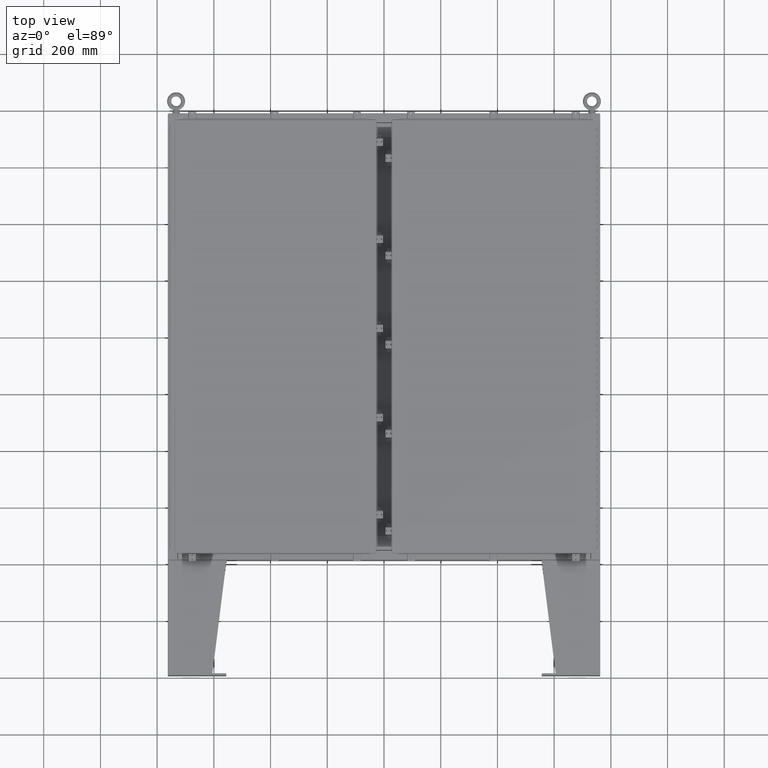
[diagram: clean part render]
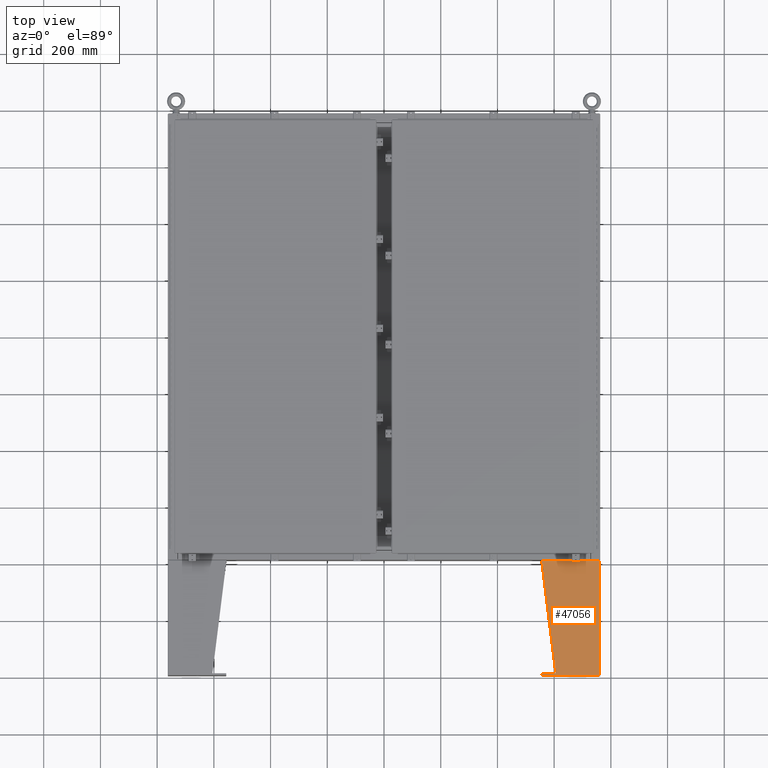
[diagram: same view with one face highlighted and labeled with its STEP entity id]
A machine part, top view. The second image highlights one B-rep face of the part: STEP entity #47056.
In plain terms, the highlighted planar face has unit normal (0, 0, -1).
Its self-contained STEP definition (entity closure, byte-faithful):
#816 = EDGE_CURVE ( 'NONE', #20283, #58457, #22958, .T. ) ;
#1327 = DIRECTION ( 'NONE',  ( 7.004738445292925900E-015, 0.0000000000000000000, 1.000000000000000000 ) ) ;
#1390 = EDGE_CURVE ( 'NONE', #40135, #58457, #12661, .T. ) ;
#2884 = FACE_OUTER_BOUND ( 'NONE', #35505, .T. ) ;
#3335 = EDGE_CURVE ( 'NONE', #40378, #24212, #20828, .T. ) ;
#5312 = VECTOR ( 'NONE', #22848, 39.37007874015748100 ) ;
#9497 = LINE ( 'NONE', #42797, #65042 ) ;
#10521 = EDGE_CURVE ( 'NONE', #46176, #40378, #9497, .T. ) ;
#10583 = DIRECTION ( 'NONE',  ( 0.0000000000000000000, -1.000000000000000000, 0.0000000000000000000 ) ) ;
#11414 = PLANE ( 'NONE',  #12048 ) ;
#12048 = AXIS2_PLACEMENT_3D ( 'NONE', #65038, #49023, #16833 ) ;
#12661 = LINE ( 'NONE', #55237, #68191 ) ;
#13746 = DIRECTION ( 'NONE',  ( 4.399772607369799400E-016, 0.9922942345449394800, 0.1239038017531047700 ) ) ;
#15000 = VECTOR ( 'NONE', #1327, 39.37007874015748100 ) ;
#15410 = LINE ( 'NONE', #64213, #56649 ) ;
#15773 = VECTOR ( 'NONE', #13746, 39.37007874015748100 ) ;
#16013 = DIRECTION ( 'NONE',  ( -3.550958521948298200E-015, -0.0000000000000000000, -1.000000000000000000 ) ) ;
#16833 = DIRECTION ( 'NONE',  ( 3.550958521948298200E-015, 0.0000000000000000000, 1.000000000000000000 ) ) ;
#20283 = VERTEX_POINT ( 'NONE', #44880 ) ;
#20828 = LINE ( 'NONE', #51130, #15773 ) ;
#21080 = ORIENTED_EDGE ( 'NONE', *, *, #3335, .F. ) ;
#21715 = EDGE_CURVE ( 'NONE', #40135, #24212, #56235, .T. ) ;
#22053 = CARTESIAN_POINT ( 'NONE',  ( 5.000000000000028400, -7.749999999999999100, 8.001000000000006600 ) ) ;
#22226 = CARTESIAN_POINT ( 'NONE',  ( 5.000000000000041700, 7.857000000000001100, 8.000999999999985200 ) ) ;
#22848 = DIRECTION ( 'NONE',  ( -3.550958521948298200E-015, 0.0000000000000000000, -1.000000000000000000 ) ) ;
#22958 = LINE ( 'NONE', #38874, #5312 ) ;
#24212 = VERTEX_POINT ( 'NONE', #22226 ) ;
#32346 = CARTESIAN_POINT ( 'NONE',  ( 4.999999999999984900, 7.857000000000001100, 0.03899999999998721200 ) ) ;
#34053 = DIRECTION ( 'NONE',  ( -0.0000000000000000000, -1.000000000000000000, 0.0000000000000000000 ) ) ;
#34333 = ORIENTED_EDGE ( 'NONE', *, *, #41210, .T. ) ;
#35505 = EDGE_LOOP ( 'NONE', ( #69166, #34333, #55725, #60271, #50095, #21080 ) ) ;
#38874 = CARTESIAN_POINT ( 'NONE',  ( 5.000000000000028400, -7.999999999999999100, 8.000999999999987000 ) ) ;
#38947 = CARTESIAN_POINT ( 'NONE',  ( 4.999999999999984900, 7.857000000000001100, 0.03899999999998721200 ) ) ;
#40135 = VERTEX_POINT ( 'NONE', #32346 ) ;
#40378 = VERTEX_POINT ( 'NONE', #66653 ) ;
#41210 = EDGE_CURVE ( 'NONE', #46176, #20283, #15410, .T. ) ;
#42797 = CARTESIAN_POINT ( 'NONE',  ( 5.000000000000028400, -7.749999999999999100, 8.000999999999987000 ) ) ;
#44880 = CARTESIAN_POINT ( 'NONE',  ( 5.000000000000028400, -7.999999999999999100, 8.000999999999987000 ) ) ;
#46176 = VERTEX_POINT ( 'NONE', #22053 ) ;
#47056 = ADVANCED_FACE ( 'NONE', ( #2884 ), #11414, .F. ) ;
#49023 = DIRECTION ( 'NONE',  ( -1.000000000000000000, 0.0000000000000000000, 3.550958521948298200E-015 ) ) ;
#50095 = ORIENTED_EDGE ( 'NONE', *, *, #21715, .T. ) ;
#51130 = CARTESIAN_POINT ( 'NONE',  ( 5.000000000000019500, -7.749999999999999100, 6.052216497445928500 ) ) ;
#52150 = CARTESIAN_POINT ( 'NONE',  ( 4.999999999999999100, -7.999999999999999100, 0.03900000000000071500 ) ) ;
#55237 = CARTESIAN_POINT ( 'NONE',  ( 4.999999999999999100, -7.999999999999999100, 0.03899999999998721200 ) ) ;
#55725 = ORIENTED_EDGE ( 'NONE', *, *, #816, .T. ) ;
#56235 = LINE ( 'NONE', #38947, #15000 ) ;
#56649 = VECTOR ( 'NONE', #10583, 39.37007874015748100 ) ;
#58457 = VERTEX_POINT ( 'NONE', #52150 ) ;
#60271 = ORIENTED_EDGE ( 'NONE', *, *, #1390, .F. ) ;
#64213 = CARTESIAN_POINT ( 'NONE',  ( 5.000000000000028400, -7.999999999999999100, 8.000999999999987000 ) ) ;
#65038 = CARTESIAN_POINT ( 'NONE',  ( 5.000000000000028400, -7.999999999999999100, 8.000999999999987000 ) ) ;
#65042 = VECTOR ( 'NONE', #16013, 39.37007874015748100 ) ;
#66653 = CARTESIAN_POINT ( 'NONE',  ( 5.000000000000021300, -7.749999999999999100, 6.052216497445926700 ) ) ;
#68191 = VECTOR ( 'NONE', #34053, 39.37007874015748100 ) ;
#69166 = ORIENTED_EDGE ( 'NONE', *, *, #10521, .F. ) ;